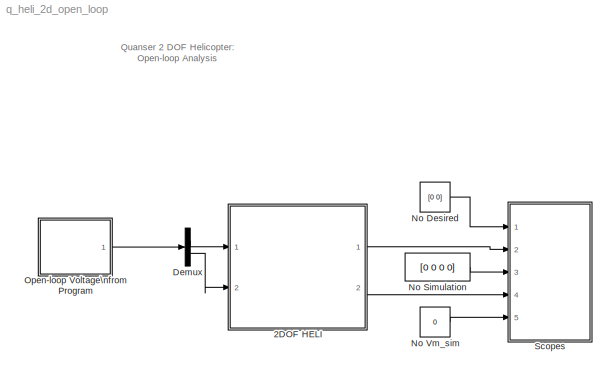
MODEL q_heli_2d_open_loop
KIND model
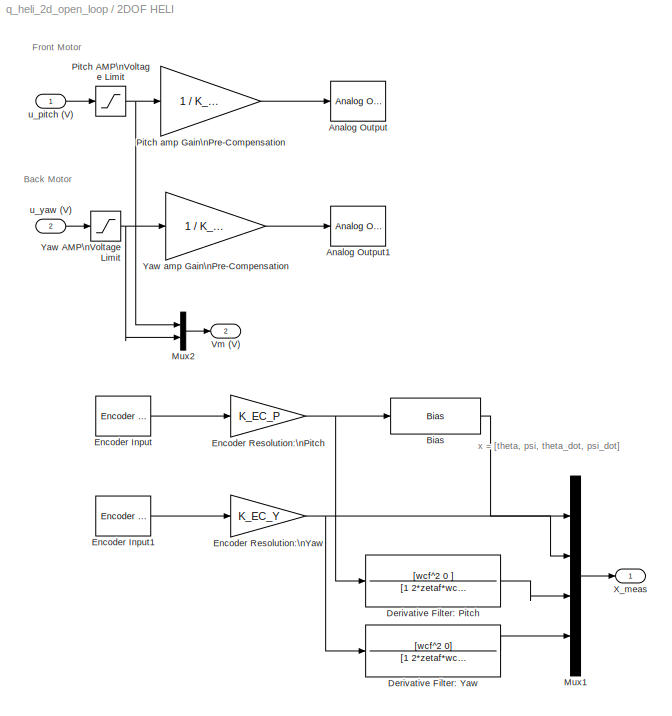
BLOCK [SubSystem] 2DOF HELI
  Ports = [2, 2]
  RequestExecContextInheritance = off
  SID = 1
  Variant = off
BLOCK [Reference] 2DOF HELI/Analog Output  REF=sldrtlib/Analog Output
  AttributesFormatString = Quanser\\nMultiQ-PCI [auto]
  Channels = 1
  DrvAddress = 4294967295
  DrvName = Quanser/MultiQ-PCI
  DrvOptions = zeros(1,0)
  FinalValue = 0
  InitialValue = 0
  MaxMissedTicks = 10
  Ports = [1]
  RangeMode = 1
  SID = 132
  SampleTime = 1e-3
  ShowMissedTicks = off
  SourceBlock = sldrtlib/Analog Output
  SourceType = Simulink Desktop Real-Time Analog Output
  VoltRange = 1
  YieldWhenWaiting = off
BLOCK [Reference] 2DOF HELI/Analog Output1  REF=sldrtlib/Analog Output
  AttributesFormatString = Quanser\\nMultiQ-PCI [auto]
  Channels = 2
  DrvAddress = 4294967295
  DrvName = Quanser/MultiQ-PCI
  DrvOptions = zeros(1,0)
  FinalValue = 0
  InitialValue = 0
  MaxMissedTicks = 10
  Ports = [1]
  RangeMode = 1
  SID = 133
  SampleTime = 1e-3
  ShowMissedTicks = off
  SourceBlock = sldrtlib/Analog Output
  SourceType = Simulink Desktop Real-Time Analog Output
  VoltRange = 1
  YieldWhenWaiting = off
BLOCK [Bias] 2DOF HELI/Bias
  Bias = theta_0
  SID = 5
  SaturateOnIntegerOverflow = off
BLOCK [TransferFcn] 2DOF HELI/Derivative Filter: Pitch
  Denominator = [1 2*zetaf*wcf wcf^2]
  Numerator = [wcf^2 0 ]
  SID = 6
BLOCK [TransferFcn] 2DOF HELI/Derivative Filter: Yaw
  Denominator = [1 2*zetaf*wcf wcf^2]
  Numerator = [wcf^2 0]
  SID = 7
BLOCK [Reference] 2DOF HELI/Encoder Input  REF=sldrtlib/Encoder Input
  AttributesFormatString = Quanser\\nMultiQ-PCI [auto]
  Channels = 1
  DataType = 1
  DrvAddress = 4294967295
  DrvName = Quanser/MultiQ-PCI
  DrvOptions = zeros(1,0)
  IndexPulse = 2
  InputFilter = Inf
  MaxMissedTicks = 10
  Ports = [0, 1]
  QuadMode = 3
  SID = 128
  SampleTime = 1e-3
  ShowMissedTicks = off
  SourceBlock = sldrtlib/Encoder Input
  SourceType = Simulink Desktop Real-Time Encoder Input
  YieldWhenWaiting = off
BLOCK [Reference] 2DOF HELI/Encoder Input1  REF=sldrtlib/Encoder Input
  AttributesFormatString = Quanser\\nMultiQ-PCI [auto]
  Channels = 2
  DataType = 1
  DrvAddress = 4294967295
  DrvName = Quanser/MultiQ-PCI
  DrvOptions = zeros(1,0)
  IndexPulse = 2
  InputFilter = Inf
  MaxMissedTicks = 10
  Ports = [0, 1]
  QuadMode = 3
  SID = 129
  SampleTime = 1e-3
  ShowMissedTicks = off
  SourceBlock = sldrtlib/Encoder Input
  SourceType = Simulink Desktop Real-Time Encoder Input
  YieldWhenWaiting = off
BLOCK [Gain] 2DOF HELI/Encoder Resolution:\nPitch 
  Gain = K_EC_P
  OutDataTypeStr = Inherit: Inherit via internal rule
  ParamDataTypeStr = Inherit: Inherit via internal rule
  SID = 8
  SaturateOnIntegerOverflow = off
BLOCK [Gain] 2DOF HELI/Encoder Resolution:\nYaw
  Gain = K_EC_Y
  OutDataTypeStr = Inherit: Inherit via internal rule
  ParamDataTypeStr = Inherit: Inherit via internal rule
  SID = 9
  SaturateOnIntegerOverflow = off
BLOCK [Mux] 2DOF HELI/Mux1
  DisplayOption = bar
  Ports = [4, 1]
  SID = 14
BLOCK [Mux] 2DOF HELI/Mux2
  DisplayOption = bar
  Inputs = 2
  Ports = [2, 1]
  SID = 15
BLOCK [Saturate] 2DOF HELI/Pitch AMP\nVoltage Limit
  InputPortMap = u0
  LowerLimit = - VMAX_AMP_P
  Ports = [1, 1]
  SID = 16
  UpperLimit = VMAX_AMP_P
BLOCK [Gain] 2DOF HELI/Pitch amp Gain\nPre-Compensation
  Gain = 1 / K_AMP
  SID = 17
BLOCK [Outport] 2DOF HELI/Vm (V)
  IconDisplay = Port number
  Port = 2
  SID = 21
BLOCK [Outport] 2DOF HELI/X_meas
  IconDisplay = Port number
  SID = 20
BLOCK [Saturate] 2DOF HELI/Yaw AMP\nVoltage Limit
  InputPortMap = u0
  LowerLimit = - VMAX_AMP_Y
  Ports = [1, 1]
  SID = 18
  UpperLimit = VMAX_AMP_Y
BLOCK [Gain] 2DOF HELI/Yaw amp Gain\nPre-Compensation
  Gain = 1 / K_AMP
  SID = 19
BLOCK [Inport] 2DOF HELI/u_pitch (V)
  IconDisplay = Port number
  SID = 2
BLOCK [Inport] 2DOF HELI/u_yaw (V)
  IconDisplay = Port number
  Port = 2
  SID = 3
BLOCK [Demux] Demux
  DisplayOption = bar
  Outputs = 2
  Ports = [1, 2]
  SID = 22
BLOCK [Constant] No Desired
  SID = 24
  Value = [0 0]
BLOCK [Constant] No Simulation
  SID = 25
  Value = [0 0 0 0]
BLOCK [Constant] No Vm_sim
  SID = 26
  Value = 0
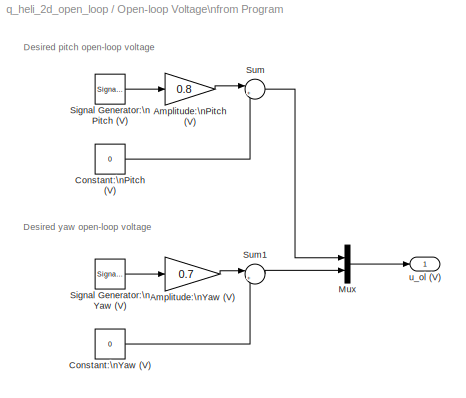
BLOCK [SubSystem] Open-loop Voltage\nfrom Program
  Ports = [0, 1]
  RequestExecContextInheritance = off
  SID = 27
  Variant = off
BLOCK [Gain] Open-loop Voltage\nfrom Program/Amplitude:\nPitch (V)
  Gain = 0.8
  OutDataTypeStr = Inherit: Inherit via internal rule
  ParamDataTypeStr = Inherit: Inherit via internal rule
  SID = 28
  SaturateOnIntegerOverflow = off
BLOCK [Gain] Open-loop Voltage\nfrom Program/Amplitude:\nYaw (V)
  Gain = 0.7
  OutDataTypeStr = Inherit: Inherit via internal rule
  ParamDataTypeStr = Inherit: Inherit via internal rule
  SID = 29
  SaturateOnIntegerOverflow = off
BLOCK [Constant] Open-loop Voltage\nfrom Program/Constant:\nPitch (V)
  SID = 30
  Value = 0
BLOCK [Constant] Open-loop Voltage\nfrom Program/Constant:\nYaw (V)
  SID = 31
  Value = 0
BLOCK [Mux] Open-loop Voltage\nfrom Program/Mux
  DisplayOption = bar
  Inputs = 2
  Ports = [2, 1]
  SID = 32
BLOCK [SignalGenerator] Open-loop Voltage\nfrom Program/Signal Generator:\nPitch (V)
  Amplitude = 3
  Frequency = 0.0001
  Ports = [0, 1]
  SID = 33
  WaveForm = square
BLOCK [SignalGenerator] Open-loop Voltage\nfrom Program/Signal Generator:\nYaw (V)
  Amplitude = 3
  Frequency = 0.4
  Ports = [0, 1]
  SID = 34
  WaveForm = square
BLOCK [Sum] Open-loop Voltage\nfrom Program/Sum
  IconShape = round
  InputSameDT = off
  Inputs = |++
  OutDataTypeStr = Inherit: Inherit via internal rule
  Ports = [2, 1]
  SID = 35
  SaturateOnIntegerOverflow = off
BLOCK [Sum] Open-loop Voltage\nfrom Program/Sum1
  IconShape = round
  InputSameDT = off
  Inputs = |++
  OutDataTypeStr = Inherit: Inherit via internal rule
  Ports = [2, 1]
  SID = 36
  SaturateOnIntegerOverflow = off
BLOCK [Outport] Open-loop Voltage\nfrom Program/u_ol (V)
  IconDisplay = Port number
  SID = 37
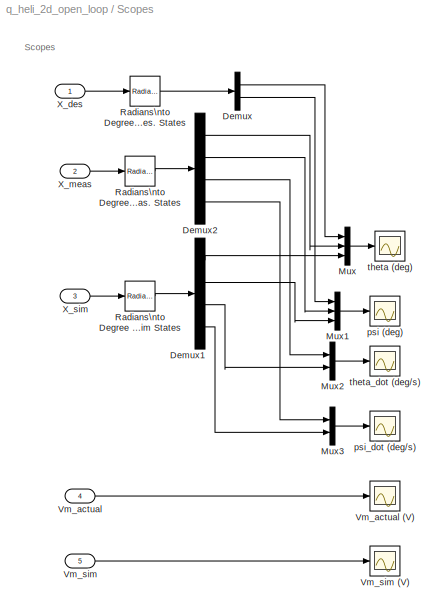
BLOCK [SubSystem] Scopes
  Ports = [5]
  RequestExecContextInheritance = off
  SID = 63
  Variant = off
BLOCK [Demux] Scopes/Demux
  DisplayOption = bar
  Outputs = 2
  Ports = [1, 2]
  SID = 69
BLOCK [Demux] Scopes/Demux1
  DisplayOption = bar
  Ports = [1, 4]
  SID = 70
BLOCK [Demux] Scopes/Demux2
  DisplayOption = bar
  Ports = [1, 4]
  SID = 71
BLOCK [Mux] Scopes/Mux
  DisplayOption = bar
  Inputs = 3
  Ports = [3, 1]
  SID = 72
BLOCK [Mux] Scopes/Mux1
  DisplayOption = bar
  Inputs = 3
  Ports = [3, 1]
  SID = 73
BLOCK [Mux] Scopes/Mux2
  DisplayOption = bar
  Inputs = 2
  Ports = [2, 1]
  SID = 74
BLOCK [Mux] Scopes/Mux3
  DisplayOption = bar
  Inputs = 2
  Ports = [2, 1]
  SID = 75
BLOCK [Reference] Scopes/Radians\nto Degree -\nSim States  REF=simulink_extras/Transformations/Radians\nto Degrees
  Ports = [1, 1]
  SID = 76
  SourceBlock = simulink_extras/Transformations/Radians\nto Degrees
  SourceType = RadiansToDegrees
BLOCK [Reference] Scopes/Radians\nto Degrees -\nDes. States  REF=simulink_extras/Transformations/Radians\nto Degrees
  Ports = [1, 1]
  SID = 77
  SourceBlock = simulink_extras/Transformations/Radians\nto Degrees
  SourceType = RadiansToDegrees
BLOCK [Reference] Scopes/Radians\nto Degrees -\nMeas. States  REF=simulink_extras/Transformations/Radians\nto Degrees
  Ports = [1, 1]
  SID = 78
  SourceBlock = simulink_extras/Transformations/Radians\nto Degrees
  SourceType = RadiansToDegrees
BLOCK [Inport] Scopes/Vm_actual
  IconDisplay = Port number
  Port = 4
  SID = 67
BLOCK [Scope] Scopes/Vm_actual (V)
  NumInputPorts = 1
  Ports = [1]
  SID = 79
  ScopeSpecificationString = Simulink.scopes.TimeScopeBlockCfg('CurrentConfiguration', extmgr.ConfigurationSet(extmgr.Configuration('Core','General UI',true),extmgr.Configuration('Core','Source UI',true),extmgr.Configuration('Sources','WiredSimulink',true,'DataLoggingVariableName','ScopeData4','DataLoggingLimitDataPoints',true,'DataLoggingSaveFormat','Array','DataLoggingDecimation','1','DataLoggingDecimateData',true),extmgr.C...<+1822ch>
BLOCK [Inport] Scopes/Vm_sim
  IconDisplay = Port number
  Port = 5
  SID = 68
BLOCK [Scope] Scopes/Vm_sim (V)
  NumInputPorts = 1
  Ports = [1]
  SID = 80
  ScopeSpecificationString = Simulink.scopes.TimeScopeBlockCfg('CurrentConfiguration', extmgr.ConfigurationSet(extmgr.Configuration('Core','General UI',true),extmgr.Configuration('Core','Source UI',true),extmgr.Configuration('Sources','WiredSimulink',true,'DataLoggingVariableName','ScopeData5','DataLoggingLimitDataPoints',true,'DataLoggingSaveFormat','Array','DataLoggingDecimation','1','DataLoggingDecimateData',true),extmgr.C...<+1758ch>
BLOCK [Inport] Scopes/X_des
  IconDisplay = Port number
  SID = 64
BLOCK [Inport] Scopes/X_meas
  IconDisplay = Port number
  Port = 2
  SID = 65
BLOCK [Inport] Scopes/X_sim
  IconDisplay = Port number
  Port = 3
  SID = 66
BLOCK [Scope] Scopes/psi (deg)
  NumInputPorts = 1
  Ports = [1]
  SID = 81
  ScopeSpecificationString = Simulink.scopes.TimeScopeBlockCfg('CurrentConfiguration', extmgr.ConfigurationSet(extmgr.Configuration('Core','General UI',true),extmgr.Configuration('Core','Source UI',true),extmgr.Configuration('Sources','WiredSimulink',true,'DataLoggingVariableName','ScopeData1','DataLoggingSaveFormat','Array','DataLoggingDecimation','1','DataLoggingDecimateData',true),extmgr.Configuration('Visuals','Time Domai...<+1801ch>
BLOCK [Scope] Scopes/psi_dot (deg//s)
  NumInputPorts = 1
  Ports = [1]
  SID = 82
  ScopeSpecificationString = Simulink.scopes.TimeScopeBlockCfg('CurrentConfiguration', extmgr.ConfigurationSet(extmgr.Configuration('Core','General UI',true),extmgr.Configuration('Core','Source UI',true),extmgr.Configuration('Sources','WiredSimulink',true,'DataLoggingVariableName','ScopeData3','DataLoggingLimitDataPoints',true,'DataLoggingSaveFormat','Array','DataLoggingDecimation','1','DataLoggingDecimateData',true),extmgr.C...<+1808ch>
BLOCK [Scope] Scopes/theta (deg)
  NumInputPorts = 1
  Ports = [1]
  SID = 83
  ScopeSpecificationString = Simulink.scopes.TimeScopeBlockCfg('CurrentConfiguration', extmgr.ConfigurationSet(extmgr.Configuration('Core','General UI',true),extmgr.Configuration('Core','Source UI',true),extmgr.Configuration('Sources','WiredSimulink',true,'DataLoggingSaveFormat','Array','DataLoggingDecimation','1','DataLoggingDecimateData',true),extmgr.Configuration('Visuals','Time Domain',true,'TimeAxisLabels','All','Seriali...<+1755ch>
BLOCK [Scope] Scopes/theta_dot (deg//s)
  NumInputPorts = 1
  Ports = [1]
  SID = 84
  ScopeSpecificationString = Simulink.scopes.TimeScopeBlockCfg('CurrentConfiguration', extmgr.ConfigurationSet(extmgr.Configuration('Core','General UI',true),extmgr.Configuration('Core','Source UI',true),extmgr.Configuration('Sources','WiredSimulink',true,'DataLoggingVariableName','ScopeData2','DataLoggingLimitDataPoints',true,'DataLoggingSaveFormat','Array','DataLoggingDecimation','1','DataLoggingDecimateData',true),extmgr.C...<+1839ch>
ANNOTATION (root): Quanser 2 DOF Helicopter:\nOpen-loop Analysis
ANNOTATION 2DOF HELI: Back Motor
ANNOTATION 2DOF HELI: Front Motor
ANNOTATION 2DOF HELI: x = [theta, psi, theta_dot, psi_dot]
ANNOTATION Open-loop Voltage\nfrom Program: Desired pitch open-loop voltage
ANNOTATION Open-loop Voltage\nfrom Program: Desired yaw open-loop voltage
ANNOTATION Scopes: Scopes
LINE 2DOF HELI/Bias:1 -> 2DOF HELI/Mux1:1
LINE 2DOF HELI/Derivative Filter: Pitch:1 -> 2DOF HELI/Mux1:3
LINE 2DOF HELI/Derivative Filter: Yaw:1 -> 2DOF HELI/Mux1:4
LINE 2DOF HELI/Encoder Input1:1 -> 2DOF HELI/Encoder Resolution:\nYaw:1
LINE 2DOF HELI/Encoder Input:1 -> 2DOF HELI/Encoder Resolution:\nPitch :1
NET 2DOF HELI/Encoder Resolution:\nPitch :1 -> 2DOF HELI/Bias:1, 2DOF HELI/Derivative Filter: Pitch:1
NET 2DOF HELI/Encoder Resolution:\nYaw:1 -> 2DOF HELI/Derivative Filter: Yaw:1, 2DOF HELI/Mux1:2
LINE 2DOF HELI/Mux1:1 -> 2DOF HELI/X_meas:1
LINE 2DOF HELI/Mux2:1 -> 2DOF HELI/Vm (V):1
NET 2DOF HELI/Pitch AMP\nVoltage Limit:1 -> 2DOF HELI/Mux2:1, 2DOF HELI/Pitch amp Gain\nPre-Compensation:1
LINE 2DOF HELI/Pitch amp Gain\nPre-Compensation:1 -> 2DOF HELI/Analog Output:1
NET 2DOF HELI/Yaw AMP\nVoltage Limit:1 -> 2DOF HELI/Mux2:2, 2DOF HELI/Yaw amp Gain\nPre-Compensation:1
LINE 2DOF HELI/Yaw amp Gain\nPre-Compensation:1 -> 2DOF HELI/Analog Output1:1
LINE 2DOF HELI/u_pitch (V):1 -> 2DOF HELI/Pitch AMP\nVoltage Limit:1
LINE 2DOF HELI/u_yaw (V):1 -> 2DOF HELI/Yaw AMP\nVoltage Limit:1
LINE 2DOF HELI:1 -> Scopes:2
LINE 2DOF HELI:2 -> Scopes:4
LINE Demux:1 -> 2DOF HELI:1
LINE Demux:2 -> 2DOF HELI:2
LINE No Desired:1 -> Scopes:1
LINE No Simulation:1 -> Scopes:3
LINE No Vm_sim:1 -> Scopes:5
LINE Open-loop Voltage\nfrom Program/Amplitude:\nPitch (V):1 -> Open-loop Voltage\nfrom Program/Sum:1
LINE Open-loop Voltage\nfrom Program/Amplitude:\nYaw (V):1 -> Open-loop Voltage\nfrom Program/Sum1:1
LINE Open-loop Voltage\nfrom Program/Constant:\nPitch (V):1 -> Open-loop Voltage\nfrom Program/Sum:2
LINE Open-loop Voltage\nfrom Program/Constant:\nYaw (V):1 -> Open-loop Voltage\nfrom Program/Sum1:2
LINE Open-loop Voltage\nfrom Program/Mux:1 -> Open-loop Voltage\nfrom Program/u_ol (V):1
LINE Open-loop Voltage\nfrom Program/Signal Generator:\nPitch (V):1 -> Open-loop Voltage\nfrom Program/Amplitude:\nPitch (V):1
LINE Open-loop Voltage\nfrom Program/Signal Generator:\nYaw (V):1 -> Open-loop Voltage\nfrom Program/Amplitude:\nYaw (V):1
LINE Open-loop Voltage\nfrom Program/Sum1:1 -> Open-loop Voltage\nfrom Program/Mux:2
LINE Open-loop Voltage\nfrom Program/Sum:1 -> Open-loop Voltage\nfrom Program/Mux:1
LINE Open-loop Voltage\nfrom Program:1 -> Demux:1
LINE Scopes/Demux1:1 -> Scopes/Mux:3
LINE Scopes/Demux1:2 -> Scopes/Mux1:3
LINE Scopes/Demux1:3 -> Scopes/Mux2:2
LINE Scopes/Demux1:4 -> Scopes/Mux3:2
LINE Scopes/Demux2:1 -> Scopes/Mux:2
LINE Scopes/Demux2:2 -> Scopes/Mux1:2
LINE Scopes/Demux2:3 -> Scopes/Mux2:1
LINE Scopes/Demux2:4 -> Scopes/Mux3:1
LINE Scopes/Demux:1 -> Scopes/Mux:1
LINE Scopes/Demux:2 -> Scopes/Mux1:1
LINE Scopes/Mux1:1 -> Scopes/psi (deg):1
LINE Scopes/Mux2:1 -> Scopes/theta_dot (deg//s):1
LINE Scopes/Mux3:1 -> Scopes/psi_dot (deg//s):1
LINE Scopes/Mux:1 -> Scopes/theta (deg):1
LINE Scopes/Radians\nto Degree -\nSim States:1 -> Scopes/Demux1:1
LINE Scopes/Radians\nto Degrees -\nDes. States:1 -> Scopes/Demux:1
LINE Scopes/Radians\nto Degrees -\nMeas. States:1 -> Scopes/Demux2:1
LINE Scopes/Vm_actual:1 -> Scopes/Vm_actual (V):1
LINE Scopes/Vm_sim:1 -> Scopes/Vm_sim (V):1
LINE Scopes/X_des:1 -> Scopes/Radians\nto Degrees -\nDes. States:1
LINE Scopes/X_meas:1 -> Scopes/Radians\nto Degrees -\nMeas. States:1
LINE Scopes/X_sim:1 -> Scopes/Radians\nto Degree -\nSim States:1
note: NET lines group one-source signal fan-out (src -> all destinations, sorted); 1:1 wires keep LINE
